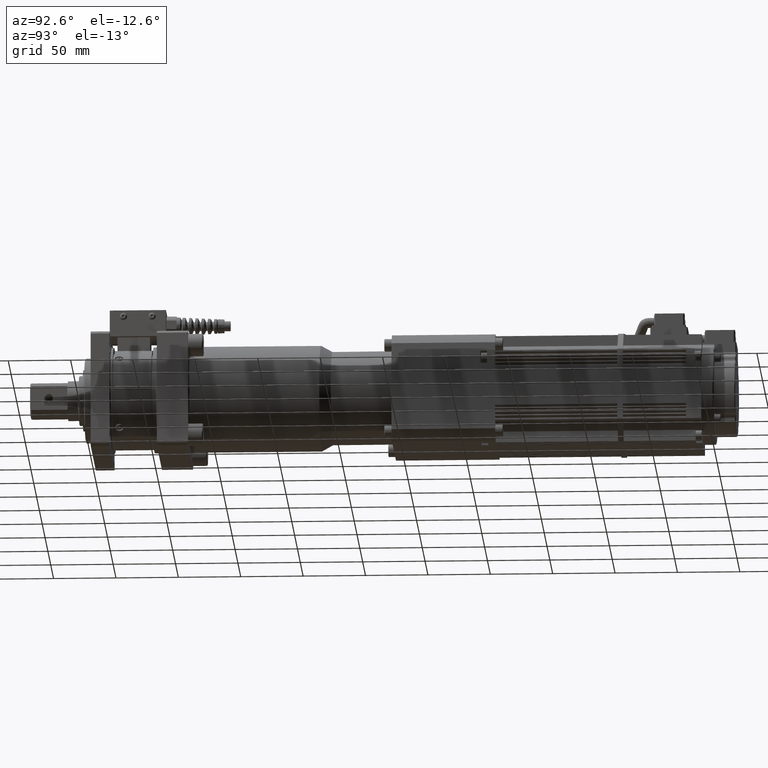
[diagram: clean part render]
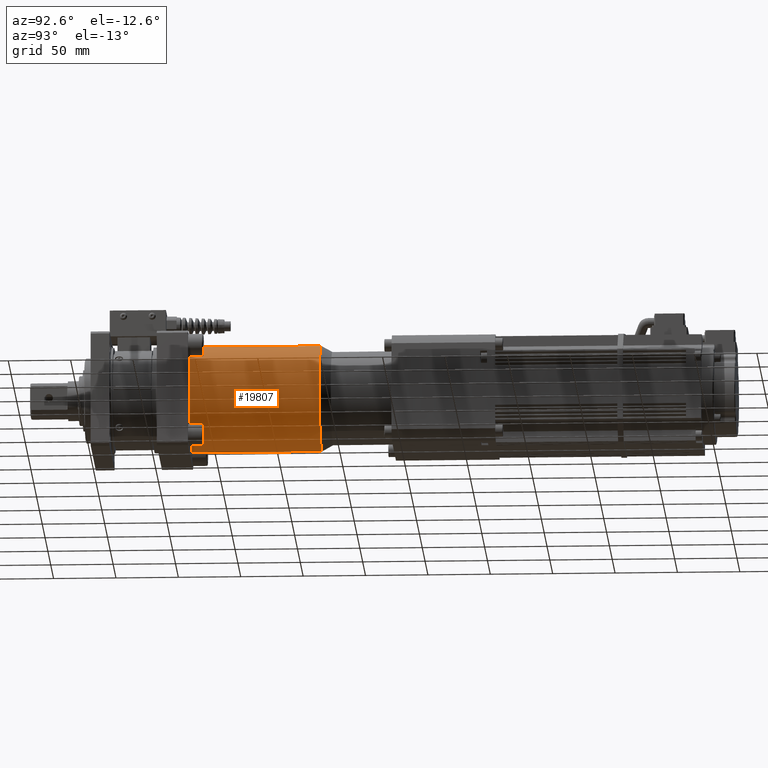
[diagram: same view with one face highlighted and labeled with its STEP entity id]
A machine part, auxiliary view. The second image highlights one B-rep face of the part: STEP entity #19807.
In plain terms, the highlighted cylindrical surface (bore or boss wall) has radius 42.5 mm, axis along (0, -1, 0).
Its self-contained STEP definition (entity closure, byte-faithful):
#1561=FACE_OUTER_BOUND('',#2715,.T.);
#2715=EDGE_LOOP('',(#14284,#14285,#14286,#14287,#14288));
#3891=CIRCLE('',#21126,42.5);
#3909=CIRCLE('',#21164,42.5);
#3910=CIRCLE('',#21165,42.5);
#4849=LINE('',#30612,#6642);
#6642=VECTOR('',#23883,42.5);
#8563=VERTEX_POINT('',#30512);
#8592=VERTEX_POINT('',#30609);
#8593=VERTEX_POINT('',#30610);
#10693=EDGE_CURVE('',#8563,#8563,#3891,.T.);
#10741=EDGE_CURVE('',#8592,#8593,#3909,.T.);
#10742=EDGE_CURVE('',#8592,#8563,#4849,.T.);
#10743=EDGE_CURVE('',#8593,#8592,#3910,.T.);
#14284=ORIENTED_EDGE('',*,*,#10741,.F.);
#14285=ORIENTED_EDGE('',*,*,#10742,.T.);
#14286=ORIENTED_EDGE('',*,*,#10693,.T.);
#14287=ORIENTED_EDGE('',*,*,#10742,.F.);
#14288=ORIENTED_EDGE('',*,*,#10743,.F.);
#19384=CYLINDRICAL_SURFACE('',#21163,42.5);
#19807=ADVANCED_FACE('',(#1561),#19384,.T.);
#21126=AXIS2_PLACEMENT_3D('',#30513,#23775,#23776);
#21163=AXIS2_PLACEMENT_3D('',#30608,#23879,#23880);
#21164=AXIS2_PLACEMENT_3D('',#30611,#23881,#23882);
#21165=AXIS2_PLACEMENT_3D('',#30613,#23884,#23885);
#23775=DIRECTION('center_axis',(3.91843420455937E-16,-1.,1.20204062883603E-16));
#23776=DIRECTION('ref_axis',(1.20204062883603E-16,-1.20204062883603E-16,
-1.));
#23879=DIRECTION('center_axis',(3.91843420455937E-16,-1.,1.20204062883603E-16));
#23880=DIRECTION('ref_axis',(1.,3.91843420455938E-16,1.20204062883603E-16));
#23881=DIRECTION('center_axis',(3.91843420455937E-16,-1.,1.20204062883603E-16));
#23882=DIRECTION('ref_axis',(-1.,-3.91843420455938E-16,6.34929569885E-17));
#23883=DIRECTION('',(-3.91843420455938E-16,1.,-1.20204062883603E-16));
#23884=DIRECTION('center_axis',(3.91843420455937E-16,-1.,1.20204062883603E-16));
#23885=DIRECTION('ref_axis',(-1.,-3.91843420455938E-16,6.34929569885E-17));
#30512=CARTESIAN_POINT('',(-42.5000000000001,183.,-3.3466198108116E-14));
#30513=CARTESIAN_POINT('Origin',(-7.62788525154225E-14,183.,-2.31527765391866E-14));
#30608=CARTESIAN_POINT('Origin',(-5.57070729414858E-14,130.5,-1.68420632377974E-14));
#30609=CARTESIAN_POINT('',(-42.5,79.,-2.09649755682212E-14));
#30610=CARTESIAN_POINT('',(-4.58405583569344E-14,79.,42.5));
#30611=CARTESIAN_POINT('Origin',(-3.5527136788005E-14,79.,-1.06515539992919E-14));
#30612=CARTESIAN_POINT('',(-42.5000000000001,130.5,-2.71554848067268E-14));
#30613=CARTESIAN_POINT('Origin',(-3.5527136788005E-14,79.,-1.06515539992919E-14));